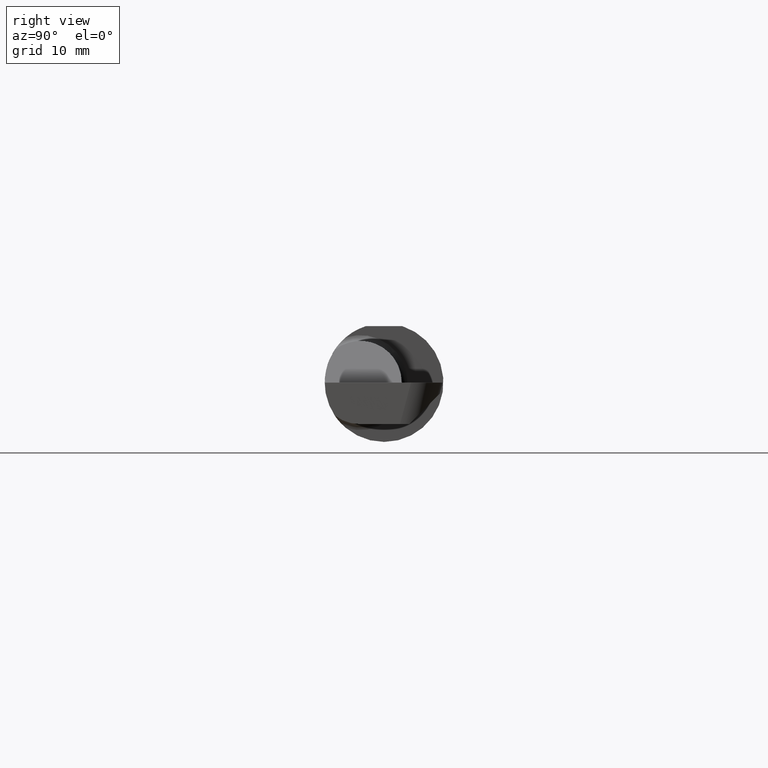
[diagram: clean part render]
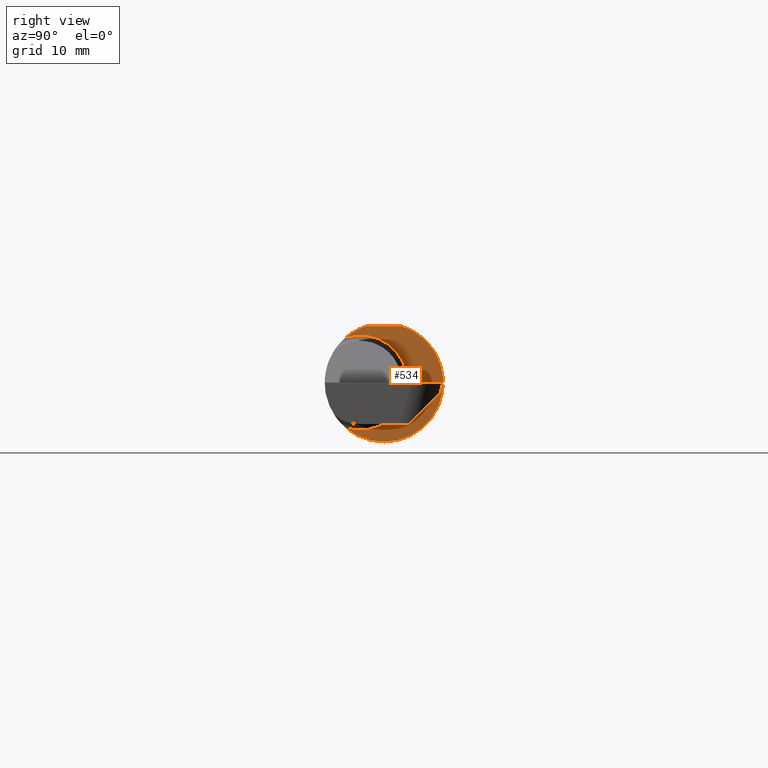
[diagram: same view with one face highlighted and labeled with its STEP entity id]
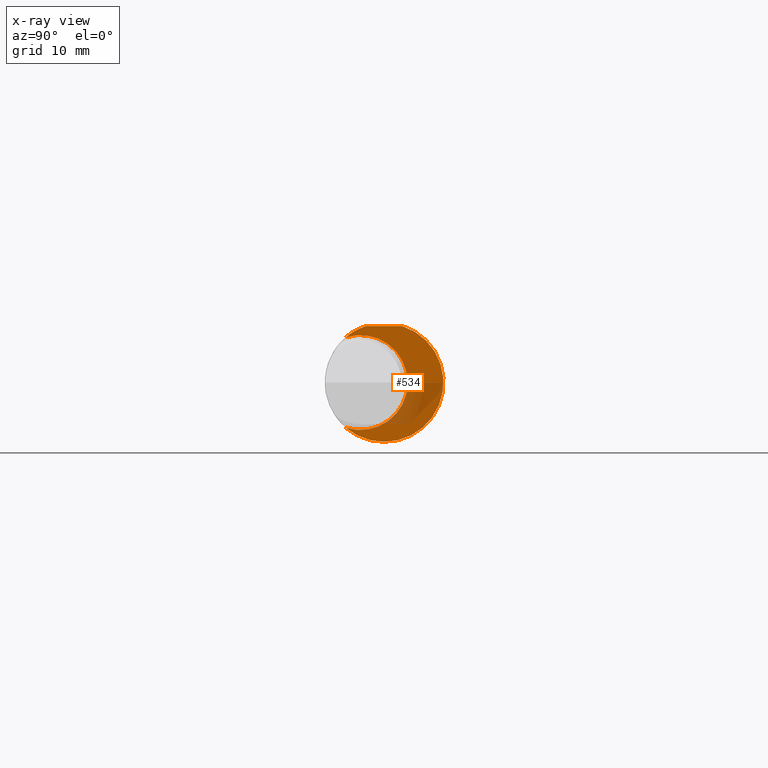
[diagram: x-ray of the same camera — body ghosted, the highlighted face saturated]
A machine part, right view. The second image highlights one B-rep face of the part: STEP entity #534.
The next image is the same camera in x-ray: the body ghosted, the highlighted face saturated — about 25% of this face is hidden behind the body in this view.
In plain terms, the highlighted planar face has unit normal (1, 0, 0).
Its self-contained STEP definition (entity closure, byte-faithful):
#15 = CARTESIAN_POINT ( 'NONE',  ( 1.450000000000000178, 0.000000000000000000, 0.000000000000000000 ) ) ;
#52 = EDGE_CURVE ( 'NONE', #225, #682, #589, .T. ) ;
#78 = DIRECTION ( 'NONE',  ( 1.000000000000000000, 7.887675390231430346E-17, 0.000000000000000000 ) ) ;
#80 = ORIENTED_EDGE ( 'NONE', *, *, #52, .F. ) ;
#86 = CIRCLE ( 'NONE', #599, 0.2498499999999999888 ) ;
#111 = ORIENTED_EDGE ( 'NONE', *, *, #439, .T. ) ;
#119 = DIRECTION ( 'NONE',  ( 1.000000000000000000, 7.887675390231430346E-17, 0.000000000000000000 ) ) ;
#136 = ORIENTED_EDGE ( 'NONE', *, *, #450, .T. ) ;
#138 = DIRECTION ( 'NONE',  ( 0.000000000000000000, 1.000000000000000000, 0.000000000000000000 ) ) ;
#142 = ORIENTED_EDGE ( 'NONE', *, *, #648, .T. ) ;
#209 = DIRECTION ( 'NONE',  ( -7.887675390231430346E-17, 1.000000000000000000, 0.000000000000000000 ) ) ;
#225 = VERTEX_POINT ( 'NONE', #620 ) ;
#236 = DIRECTION ( 'NONE',  ( 0.000000000000000000, 1.000000000000000000, 0.000000000000000000 ) ) ;
#308 = VECTOR ( 'NONE', #209, 39.37007874015748143 ) ;
#345 = CARTESIAN_POINT ( 'NONE',  ( 1.450000000000000178, 0.2498499999999998500, 0.000000000000000000 ) ) ;
#355 = CARTESIAN_POINT ( 'NONE',  ( 1.450000000000000178, 0.07650098038587520299, 0.2378499999999998671 ) ) ;
#360 = DIRECTION ( 'NONE',  ( -1.000000000000000000, -7.887675390231430346E-17, -0.000000000000000000 ) ) ;
#397 = DIRECTION ( 'NONE',  ( -7.887675390231430346E-17, 1.000000000000000000, 0.000000000000000000 ) ) ;
#419 = CARTESIAN_POINT ( 'NONE',  ( 1.450000000000000178, -0.1616050818046603221, 0.1905487340154980724 ) ) ;
#432 = CARTESIAN_POINT ( 'NONE',  ( 1.450000000000000178, 0.2498499999999996835, 0.2378499999999998671 ) ) ;
#439 = EDGE_CURVE ( 'NONE', #225, #719, #503, .T. ) ;
#447 = CARTESIAN_POINT ( 'NONE',  ( 1.450000000000000178, 0.000000000000000000, 0.000000000000000000 ) ) ;
#450 = EDGE_CURVE ( 'NONE', #719, #544, #693, .T. ) ;
#501 = EDGE_LOOP ( 'NONE', ( #142, #80, #111, #136 ) ) ;
#503 = CIRCLE ( 'NONE', #679, 0.2498499999999999888 ) ;
#513 = FACE_OUTER_BOUND ( 'NONE', #501, .T. ) ;
#534 = ADVANCED_FACE ( 'NONE', ( #513 ), #576, .T. ) ;
#544 = VERTEX_POINT ( 'NONE', #571 ) ;
#571 = CARTESIAN_POINT ( 'NONE',  ( 1.450000000000000178, -0.1616050818046603221, -0.1905487340154980724 ) ) ;
#574 = AXIS2_PLACEMENT_3D ( 'NONE', #706, #360, #664 ) ;
#576 = PLANE ( 'NONE',  #635 ) ;
#589 = LINE ( 'NONE', #432, #308 ) ;
#599 = AXIS2_PLACEMENT_3D ( 'NONE', #447, #683, #236 ) ;
#620 = CARTESIAN_POINT ( 'NONE',  ( 1.450000000000000178, -0.07650098038587530014, 0.2378499999999998671 ) ) ;
#635 = AXIS2_PLACEMENT_3D ( 'NONE', #345, #119, #397 ) ;
#648 = EDGE_CURVE ( 'NONE', #544, #682, #86, .T. ) ;
#664 = DIRECTION ( 'NONE',  ( 0.000000000000000000, -1.000000000000000000, 0.000000000000000000 ) ) ;
#679 = AXIS2_PLACEMENT_3D ( 'NONE', #15, #78, #138 ) ;
#682 = VERTEX_POINT ( 'NONE', #355 ) ;
#683 = DIRECTION ( 'NONE',  ( 1.000000000000000000, 7.887675390231430346E-17, 0.000000000000000000 ) ) ;
#693 = CIRCLE ( 'NONE', #574, 0.1999999999999999833 ) ;
#706 = CARTESIAN_POINT ( 'NONE',  ( 1.450000000000000178, -0.1008500000000001062, 0.000000000000000000 ) ) ;
#719 = VERTEX_POINT ( 'NONE', #419 ) ;